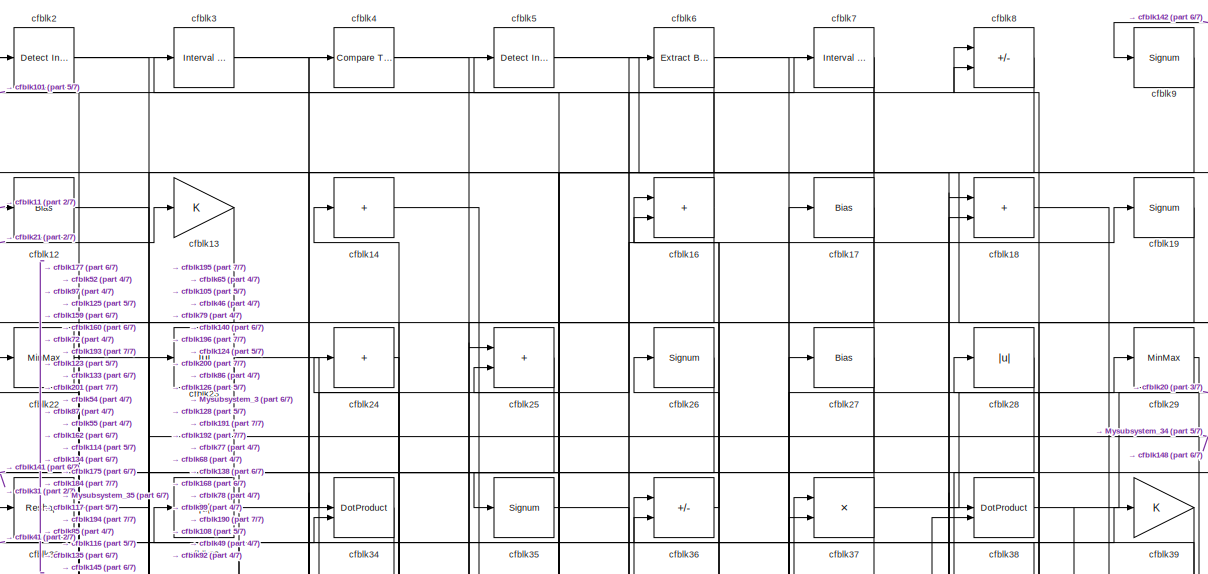
[diagram: root canvas - part 1/7, full width, top band]
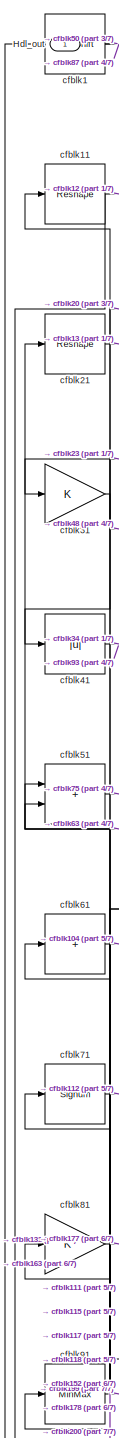
[diagram: root canvas - part 2/7, top left region]
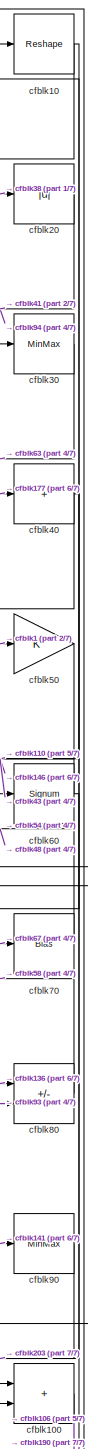
[diagram: root canvas - part 3/7, top right region]
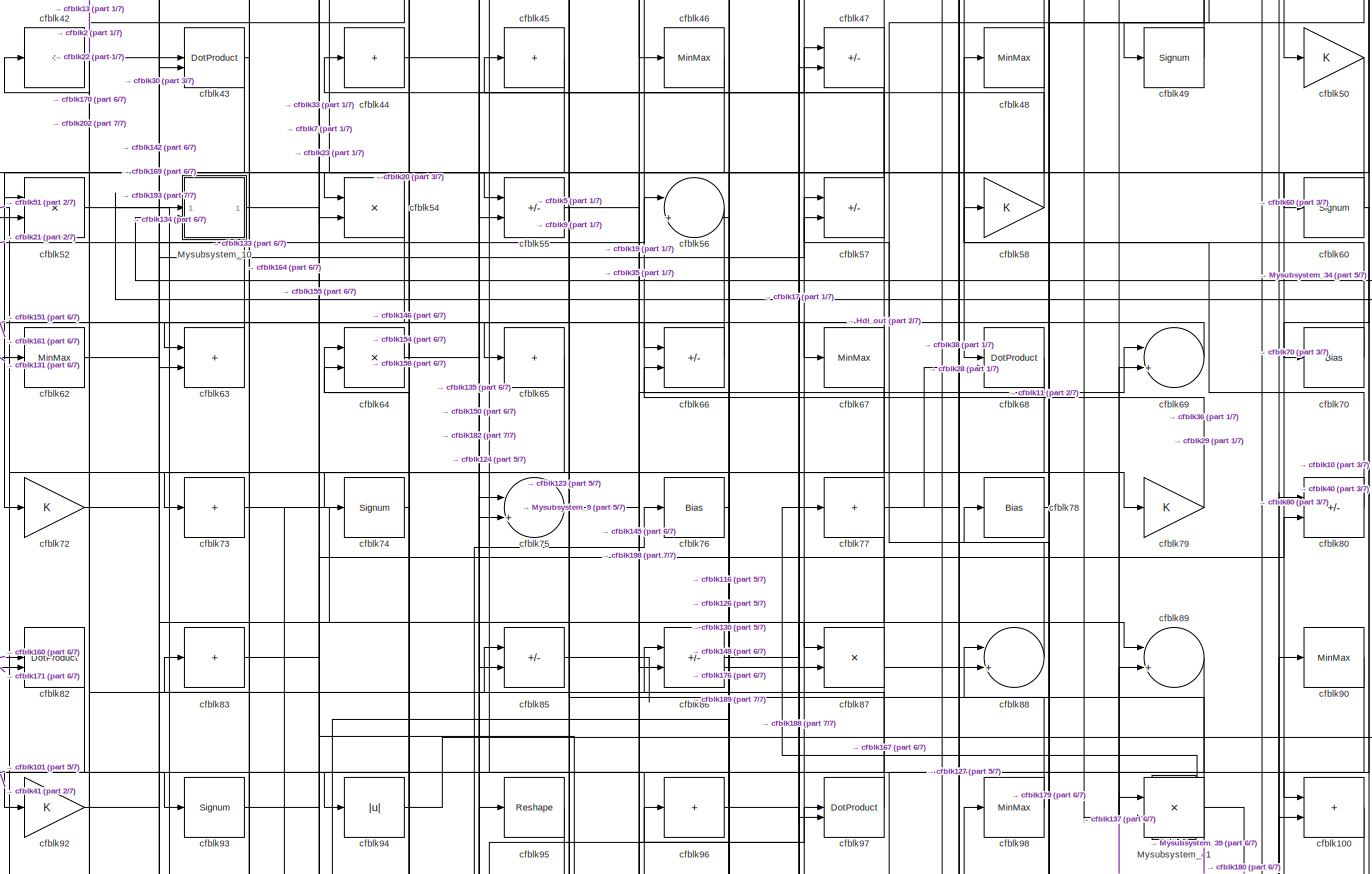
[diagram: root canvas - part 4/7, full width, middle band]
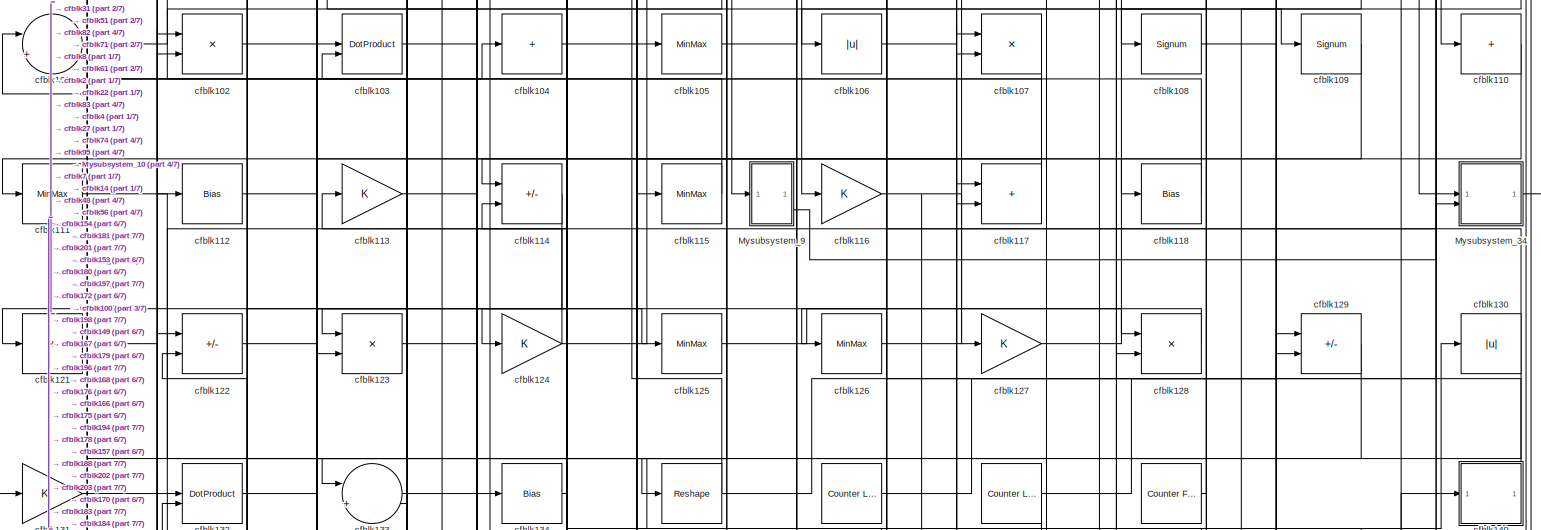
[diagram: root canvas - part 5/7, full width, middle band]
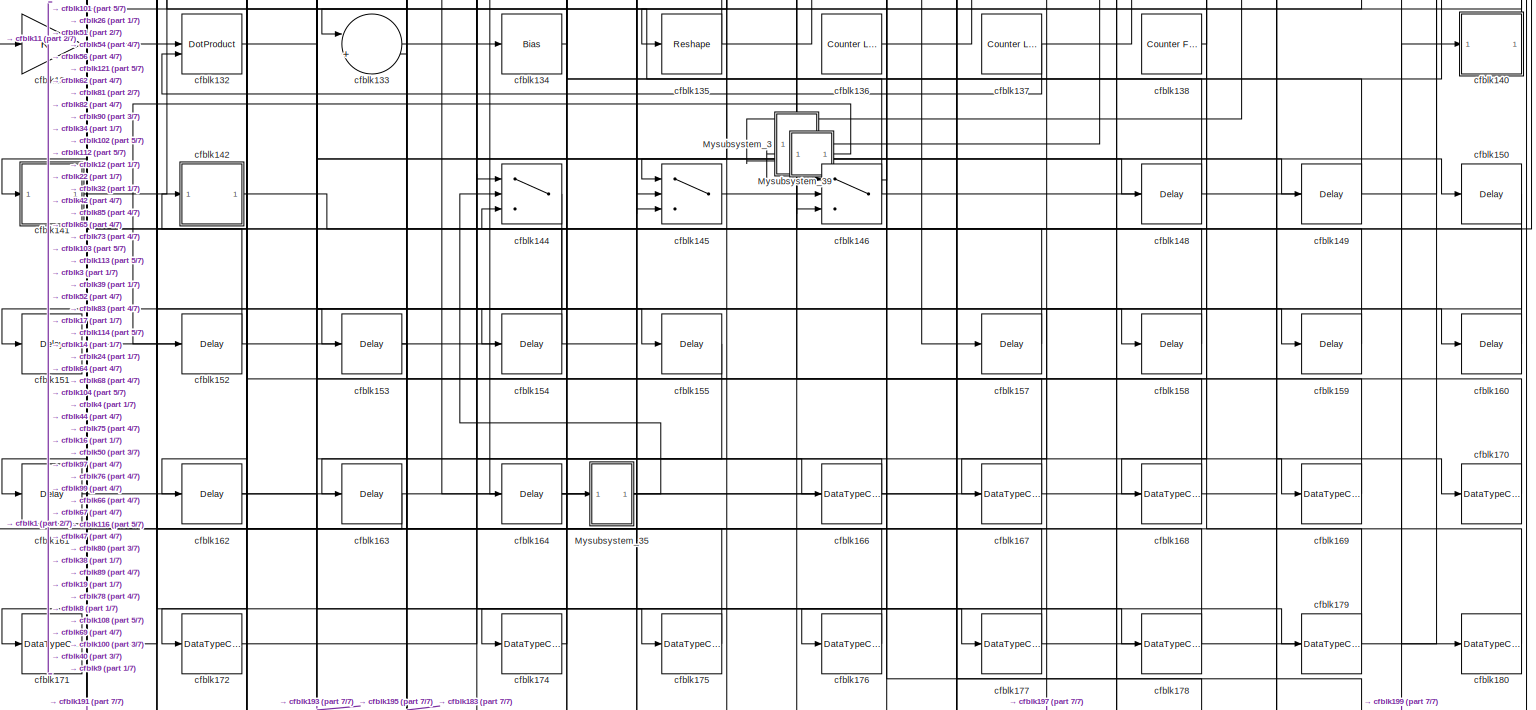
[diagram: root canvas - part 6/7, full width, bottom band]
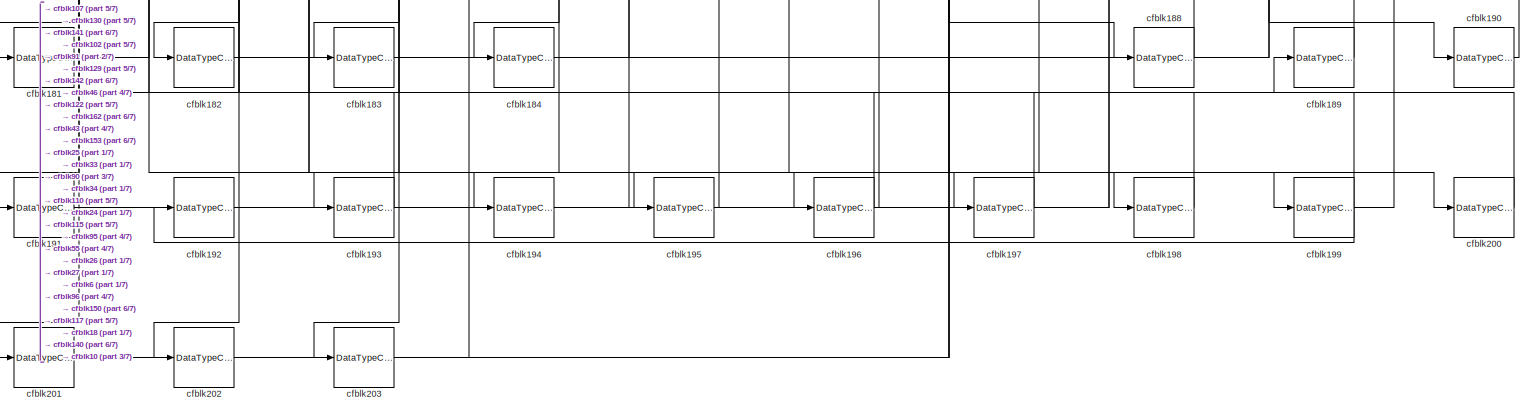
[diagram: root canvas - part 7/7, full width, bottom band]
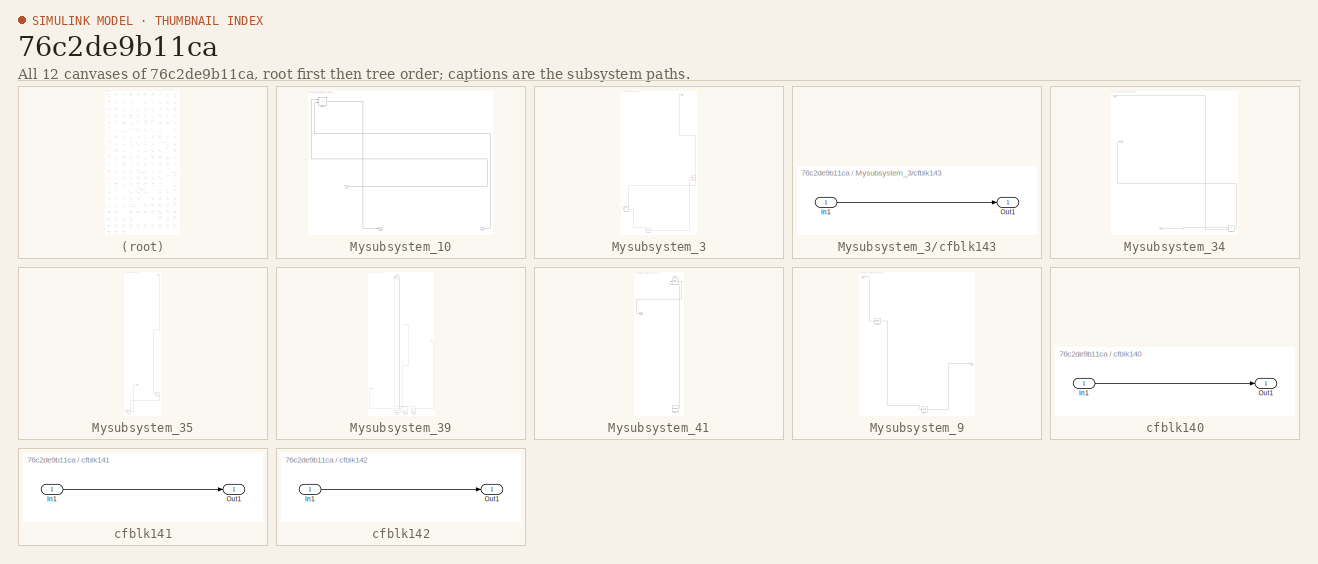
[diagram: thumbnail index - all 12 canvases of the model, root first then tree order]
MODEL slx_76c2de9b11ca
KIND model
CONFIG AbsTol = auto
CONFIG EnableMultiTasking = off
CONFIG FixedStep = auto
CONFIG MaxStep = auto
CONFIG MinStep = auto
CONFIG RelTol = 1e-3
CONFIG SampleTimeConstraint = Unconstrained
CONFIG SolverName = VariableStepAuto
CONFIG StartTime = 0.0
CONFIG StopTime = 10.0
BLOCK [Outport] Hdl_out
  OutDataTypeStr = uint8
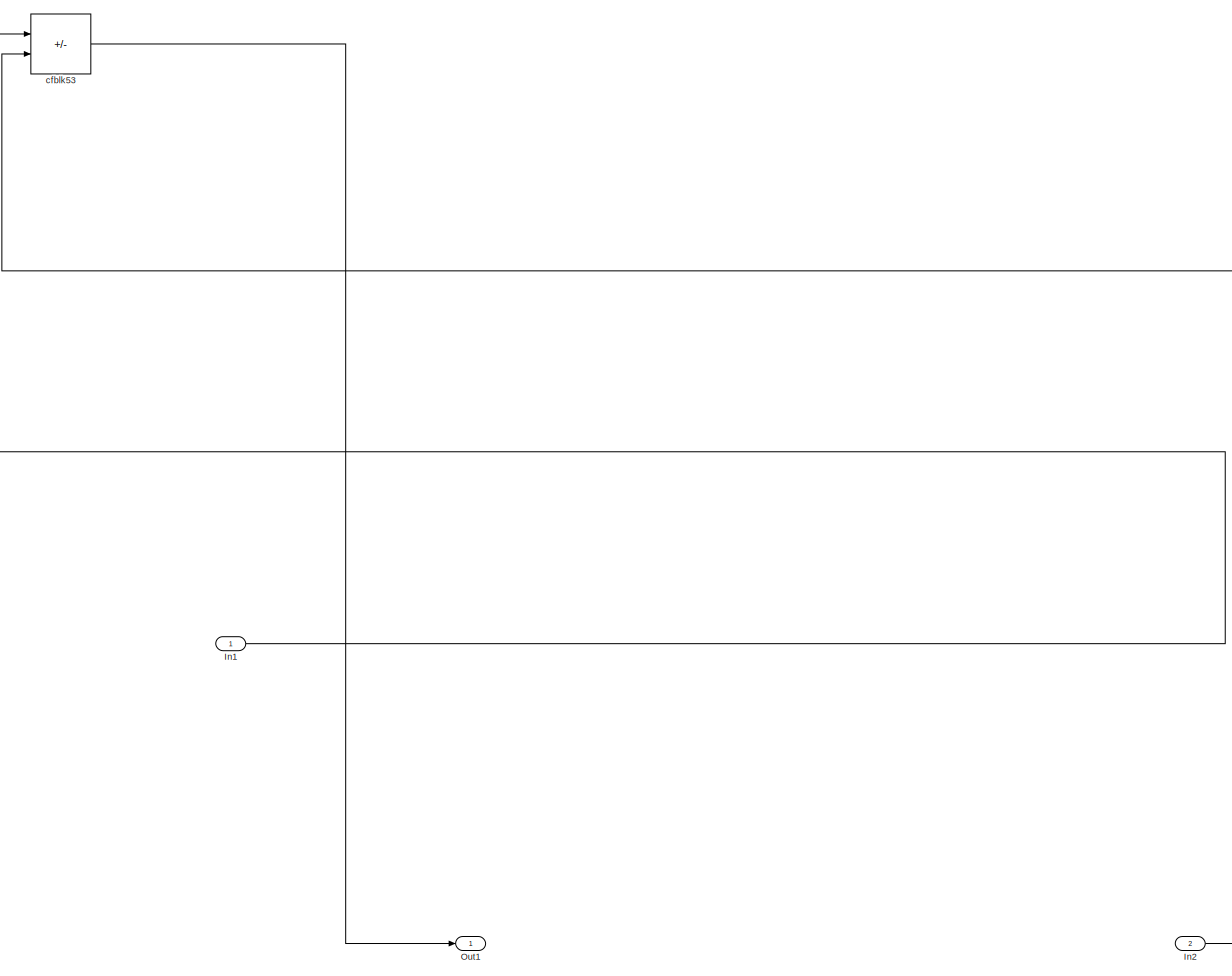
[diagram: Mysubsystem_10 - part 1/1, most of the canvas]
BLOCK [SubSystem] Mysubsystem_10
  RTWFcnName = Mysubsystem_10
  RTWFcnNameOpts = User specified
  RTWFileNameOpts = Use function name
  RTWSystemCode = Reusable function
  TreatAsAtomicUnit = on
BLOCK [Inport] Mysubsystem_10/In1
BLOCK [Inport] Mysubsystem_10/In2
  Port = 2
BLOCK [Outport] Mysubsystem_10/Out1
BLOCK [Sum] Mysubsystem_10/cfblk53
  IconShape = rectangular
  Inputs = +-
BLOCK [SubSystem] Mysubsystem_3
  RTWFcnName = Mysubsystem_3
  RTWFcnNameOpts = User specified
  RTWFileNameOpts = Use function name
  RTWSystemCode = Reusable function
  TreatAsAtomicUnit = on
BLOCK [Outport] Mysubsystem_3/Out1
BLOCK [Signum] Mysubsystem_3/cfblk119
BLOCK [SubSystem] Mysubsystem_3/cfblk143
  LibrarySourceBlock = hdlsllib/Ports &\nSubsystems/Subsystem
BLOCK [Inport] Mysubsystem_3/cfblk143/In1
BLOCK [Outport] Mysubsystem_3/cfblk143/Out1
BLOCK [Delay] Mysubsystem_3/cfblk165
  InputPortMap = u0
  SampleTime = 1
BLOCK [SubSystem] Mysubsystem_34
  RTWFcnName = Mysubsystem_34
  RTWFcnNameOpts = User specified
  RTWFileNameOpts = Use function name
  RTWSystemCode = Reusable function
  TreatAsAtomicUnit = on
BLOCK [Inport] Mysubsystem_34/In1
BLOCK [Inport] Mysubsystem_34/In2
  Port = 2
BLOCK [Outport] Mysubsystem_34/Out1
BLOCK [Sum] Mysubsystem_34/cfblk120
  IconShape = rectangular
  Inputs = +-
BLOCK [SubSystem] Mysubsystem_35
  RTWFcnName = Mysubsystem_35
  RTWFcnNameOpts = User specified
  RTWFileNameOpts = Use function name
  RTWSystemCode = Reusable function
  TreatAsAtomicUnit = on
BLOCK [Inport] Mysubsystem_35/In1
BLOCK [Outport] Mysubsystem_35/Out1
BLOCK [Delay] Mysubsystem_35/cfblk156
  InputPortMap = u0
  SampleTime = 1
BLOCK [DataTypeConversion] Mysubsystem_35/cfblk173
  OutDataTypeStr = uint8
  RndMeth = Floor
  SaturateOnIntegerOverflow = off
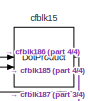
[diagram: Mysubsystem_39 - part 1/4, top center region]
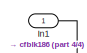
[diagram: Mysubsystem_39 - part 2/4, central region]
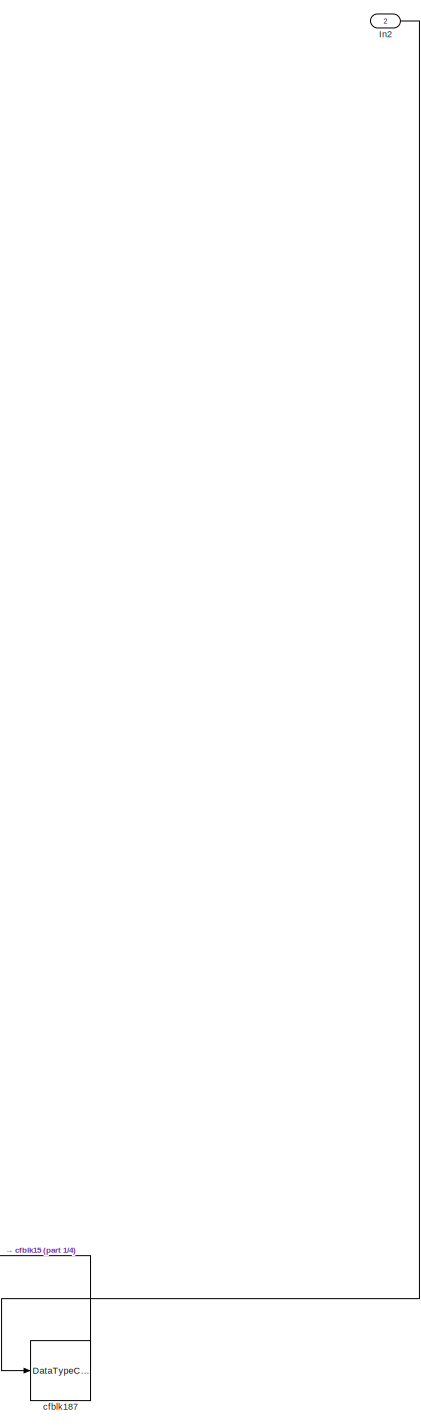
[diagram: Mysubsystem_39 - part 3/4, bottom right region]
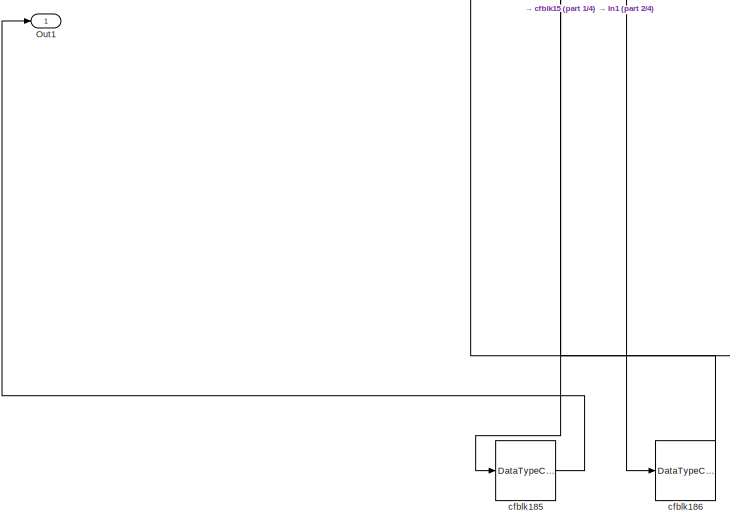
[diagram: Mysubsystem_39 - part 4/4, bottom left region]
BLOCK [SubSystem] Mysubsystem_39
  RTWFcnName = Mysubsystem_39
  RTWFcnNameOpts = User specified
  RTWFileNameOpts = Use function name
  RTWSystemCode = Reusable function
  TreatAsAtomicUnit = on
BLOCK [Inport] Mysubsystem_39/In1
BLOCK [Inport] Mysubsystem_39/In2
  Port = 2
BLOCK [Outport] Mysubsystem_39/Out1
BLOCK [DotProduct] Mysubsystem_39/cfblk15
  OutDataTypeStr = Inherit: Inherit via internal rule
BLOCK [DataTypeConversion] Mysubsystem_39/cfblk185
  OutDataTypeStr = uint8
  RndMeth = Floor
  SaturateOnIntegerOverflow = off
BLOCK [DataTypeConversion] Mysubsystem_39/cfblk186
  OutDataTypeStr = uint8
  RndMeth = Floor
  SaturateOnIntegerOverflow = off
BLOCK [DataTypeConversion] Mysubsystem_39/cfblk187
  OutDataTypeStr = uint8
  RndMeth = Floor
  SaturateOnIntegerOverflow = off
BLOCK [SubSystem] Mysubsystem_41
  RTWFcnName = Mysubsystem_41
  RTWFcnNameOpts = User specified
  RTWFileNameOpts = Use function name
  RTWSystemCode = Reusable function
  TreatAsAtomicUnit = on
BLOCK [Outport] Mysubsystem_41/Out1
BLOCK [Reference] Mysubsystem_41/cfblk139  REF=hdlsllib/Sources/Counter
Limited
  SourceBlock = hdlsllib/Sources/Counter\nLimited
  SourceType = Counter Limited
BLOCK [MinMax] Mysubsystem_41/cfblk59
BLOCK [SubSystem] Mysubsystem_9
  RTWFcnName = Mysubsystem_9
  RTWFcnNameOpts = User specified
  RTWFileNameOpts = Use function name
  RTWSystemCode = Reusable function
  TreatAsAtomicUnit = on
BLOCK [Inport] Mysubsystem_9/In1
BLOCK [Outport] Mysubsystem_9/Out1
BLOCK [Delay] Mysubsystem_9/cfblk147
  InputPortMap = u0
  SampleTime = 1
BLOCK [MinMax] Mysubsystem_9/cfblk84
BLOCK [ArithShift] cfblk1
  BitShiftNumber = 8
  InputPortMap = u0
BLOCK [Reshape] cfblk10
BLOCK [Sum] cfblk100
  IconShape = rectangular
  OutDataTypeStr = uint8
BLOCK [Sum] cfblk101
  Inputs = |++
  OutDataTypeStr = uint8
BLOCK [Product] cfblk102
  Inputs = */
  OutDataTypeStr = uint8
  RndMeth = Zero
  SaturateOnIntegerOverflow = on
BLOCK [DotProduct] cfblk103
  OutDataTypeStr = uint8
BLOCK [Sum] cfblk104
  IconShape = rectangular
  Inputs = +
  OutDataTypeStr = uint8
BLOCK [MinMax] cfblk105
  OutDataTypeStr = uint8
BLOCK [Abs] cfblk106
  OutDataTypeStr = uint8
  SaturateOnIntegerOverflow = off
BLOCK [Product] cfblk107
  Inputs = */
  OutDataTypeStr = uint8
  RndMeth = Zero
  SaturateOnIntegerOverflow = on
BLOCK [Signum] cfblk108
BLOCK [Signum] cfblk109
BLOCK [Reshape] cfblk11
BLOCK [Sum] cfblk110
  IconShape = rectangular
  Inputs = +
  OutDataTypeStr = uint8
BLOCK [MinMax] cfblk111
  OutDataTypeStr = uint8
BLOCK [Bias] cfblk112
  Bias = 0.0
  SaturateOnIntegerOverflow = off
BLOCK [Gain] cfblk113
  OutDataTypeStr = uint8
BLOCK [Sum] cfblk114
  IconShape = rectangular
  Inputs = +-
  OutDataTypeStr = uint8
BLOCK [MinMax] cfblk115
  OutDataTypeStr = uint8
BLOCK [Gain] cfblk116
  OutDataTypeStr = uint8
BLOCK [Sum] cfblk117
  IconShape = rectangular
  OutDataTypeStr = uint8
BLOCK [Bias] cfblk118
  Bias = 0.0
  SaturateOnIntegerOverflow = off
BLOCK [Bias] cfblk12
  Bias = 0.0
  SaturateOnIntegerOverflow = off
BLOCK [Sum] cfblk121
  IconShape = rectangular
  Inputs = +
  OutDataTypeStr = uint8
BLOCK [Sum] cfblk122
  IconShape = rectangular
  Inputs = +-
  OutDataTypeStr = uint8
BLOCK [Product] cfblk123
  Inputs = */
  OutDataTypeStr = uint8
  RndMeth = Zero
  SaturateOnIntegerOverflow = on
BLOCK [Gain] cfblk124
  OutDataTypeStr = uint8
BLOCK [MinMax] cfblk125
  OutDataTypeStr = uint8
BLOCK [MinMax] cfblk126
  OutDataTypeStr = uint8
BLOCK [Gain] cfblk127
  OutDataTypeStr = uint8
BLOCK [Product] cfblk128
  Inputs = */
  OutDataTypeStr = uint8
  RndMeth = Zero
  SaturateOnIntegerOverflow = on
BLOCK [Sum] cfblk129
  IconShape = rectangular
  Inputs = +-
  OutDataTypeStr = uint8
BLOCK [Gain] cfblk13
  OutDataTypeStr = uint8
BLOCK [Abs] cfblk130
  OutDataTypeStr = uint8
  SaturateOnIntegerOverflow = off
BLOCK [Gain] cfblk131
  OutDataTypeStr = uint8
BLOCK [DotProduct] cfblk132
  OutDataTypeStr = uint8
BLOCK [Sum] cfblk133
  Inputs = |++
  OutDataTypeStr = uint8
BLOCK [Bias] cfblk134
  Bias = 0.0
  SaturateOnIntegerOverflow = off
BLOCK [Reshape] cfblk135
BLOCK [Reference] cfblk136  REF=hdlsllib/Sources/Counter
Limited
  SourceBlock = hdlsllib/Sources/Counter\nLimited
  SourceType = Counter Limited
BLOCK [Reference] cfblk137  REF=hdlsllib/Sources/Counter
Limited
  SourceBlock = hdlsllib/Sources/Counter\nLimited
  SourceType = Counter Limited
BLOCK [Reference] cfblk138  REF=hdlsllib/Sources/Counter
Free-Running
  SourceBlock = hdlsllib/Sources/Counter\nFree-Running
  SourceType = Counter Free-Running
BLOCK [Sum] cfblk14
  IconShape = rectangular
  Inputs = +
  OutDataTypeStr = uint8
BLOCK [SubSystem] cfblk140
  LibrarySourceBlock = hdlsllib/Ports &\nSubsystems/Subsystem
BLOCK [Inport] cfblk140/In1
BLOCK [Outport] cfblk140/Out1
BLOCK [SubSystem] cfblk141
  LibrarySourceBlock = hdlsllib/Ports &\nSubsystems/Subsystem
BLOCK [Inport] cfblk141/In1
BLOCK [Outport] cfblk141/Out1
BLOCK [SubSystem] cfblk142
  LibrarySourceBlock = hdlsllib/Ports &\nSubsystems/Subsystem
BLOCK [Inport] cfblk142/In1
BLOCK [Outport] cfblk142/Out1
BLOCK [Switch] cfblk144
  InputSameDT = off
  OutDataTypeStr = uint8
  SaturateOnIntegerOverflow = off
BLOCK [Switch] cfblk145
  InputSameDT = off
  OutDataTypeStr = uint8
  SaturateOnIntegerOverflow = off
BLOCK [Switch] cfblk146
  InputSameDT = off
  OutDataTypeStr = uint8
  SaturateOnIntegerOverflow = off
BLOCK [Delay] cfblk148
  InputPortMap = u0
  SampleTime = 1
BLOCK [Delay] cfblk149
  InputPortMap = u0
  SampleTime = 1
BLOCK [Delay] cfblk150
  InputPortMap = u0
  SampleTime = 1
BLOCK [Delay] cfblk151
  InputPortMap = u0
  SampleTime = 1
BLOCK [Delay] cfblk152
  InputPortMap = u0
  SampleTime = 1
BLOCK [Delay] cfblk153
  InputPortMap = u0
  SampleTime = 1
BLOCK [Delay] cfblk154
  InputPortMap = u0
  SampleTime = 1
BLOCK [Delay] cfblk155
  InputPortMap = u0
  SampleTime = 1
BLOCK [Delay] cfblk157
  InputPortMap = u0
  SampleTime = 1
BLOCK [Delay] cfblk158
  InputPortMap = u0
  SampleTime = 1
BLOCK [Delay] cfblk159
  InputPortMap = u0
  SampleTime = 1
BLOCK [Sum] cfblk16
  IconShape = rectangular
  OutDataTypeStr = uint8
BLOCK [Delay] cfblk160
  InputPortMap = u0
  SampleTime = 1
BLOCK [Delay] cfblk161
  InputPortMap = u0
  SampleTime = 1
BLOCK [Delay] cfblk162
  InputPortMap = u0
  SampleTime = 1
BLOCK [Delay] cfblk163
  InputPortMap = u0
  SampleTime = 1
BLOCK [Delay] cfblk164
  InputPortMap = u0
  SampleTime = 1
BLOCK [DataTypeConversion] cfblk166
  OutDataTypeStr = uint8
  RndMeth = Floor
  SaturateOnIntegerOverflow = off
BLOCK [DataTypeConversion] cfblk167
  OutDataTypeStr = uint8
  RndMeth = Floor
  SaturateOnIntegerOverflow = off
BLOCK [DataTypeConversion] cfblk168
  OutDataTypeStr = uint8
  RndMeth = Floor
  SaturateOnIntegerOverflow = off
BLOCK [DataTypeConversion] cfblk169
  OutDataTypeStr = uint8
  RndMeth = Floor
  SaturateOnIntegerOverflow = off
BLOCK [Bias] cfblk17
  Bias = 0.0
  SaturateOnIntegerOverflow = off
BLOCK [DataTypeConversion] cfblk170
  OutDataTypeStr = uint8
  RndMeth = Floor
  SaturateOnIntegerOverflow = off
BLOCK [DataTypeConversion] cfblk171
  OutDataTypeStr = uint8
  RndMeth = Floor
  SaturateOnIntegerOverflow = off
BLOCK [DataTypeConversion] cfblk172
  OutDataTypeStr = uint8
  RndMeth = Floor
  SaturateOnIntegerOverflow = off
BLOCK [DataTypeConversion] cfblk174
  OutDataTypeStr = uint8
  RndMeth = Floor
  SaturateOnIntegerOverflow = off
BLOCK [DataTypeConversion] cfblk175
  OutDataTypeStr = uint8
  RndMeth = Floor
  SaturateOnIntegerOverflow = off
BLOCK [DataTypeConversion] cfblk176
  OutDataTypeStr = uint8
  RndMeth = Floor
  SaturateOnIntegerOverflow = off
BLOCK [DataTypeConversion] cfblk177
  OutDataTypeStr = uint8
  RndMeth = Floor
  SaturateOnIntegerOverflow = off
BLOCK [DataTypeConversion] cfblk178
  OutDataTypeStr = uint8
  RndMeth = Floor
  SaturateOnIntegerOverflow = off
BLOCK [DataTypeConversion] cfblk179
  OutDataTypeStr = uint8
  RndMeth = Floor
  SaturateOnIntegerOverflow = off
BLOCK [Sum] cfblk18
  IconShape = rectangular
  OutDataTypeStr = uint8
BLOCK [DataTypeConversion] cfblk180
  OutDataTypeStr = uint8
  RndMeth = Floor
  SaturateOnIntegerOverflow = off
BLOCK [DataTypeConversion] cfblk181
  OutDataTypeStr = uint8
  RndMeth = Floor
  SaturateOnIntegerOverflow = off
BLOCK [DataTypeConversion] cfblk182
  OutDataTypeStr = uint8
  RndMeth = Floor
  SaturateOnIntegerOverflow = off
BLOCK [DataTypeConversion] cfblk183
  OutDataTypeStr = uint8
  RndMeth = Floor
  SaturateOnIntegerOverflow = off
BLOCK [DataTypeConversion] cfblk184
  OutDataTypeStr = uint8
  RndMeth = Floor
  SaturateOnIntegerOverflow = off
BLOCK [DataTypeConversion] cfblk188
  OutDataTypeStr = uint8
  RndMeth = Floor
  SaturateOnIntegerOverflow = off
BLOCK [DataTypeConversion] cfblk189
  OutDataTypeStr = uint8
  RndMeth = Floor
  SaturateOnIntegerOverflow = off
BLOCK [Signum] cfblk19
BLOCK [DataTypeConversion] cfblk190
  OutDataTypeStr = uint8
  RndMeth = Floor
  SaturateOnIntegerOverflow = off
BLOCK [DataTypeConversion] cfblk191
  OutDataTypeStr = uint8
  RndMeth = Floor
  SaturateOnIntegerOverflow = off
BLOCK [DataTypeConversion] cfblk192
  OutDataTypeStr = uint8
  RndMeth = Floor
  SaturateOnIntegerOverflow = off
BLOCK [DataTypeConversion] cfblk193
  OutDataTypeStr = uint8
  RndMeth = Floor
  SaturateOnIntegerOverflow = off
BLOCK [DataTypeConversion] cfblk194
  OutDataTypeStr = uint8
  RndMeth = Floor
  SaturateOnIntegerOverflow = off
BLOCK [DataTypeConversion] cfblk195
  OutDataTypeStr = uint8
  RndMeth = Floor
  SaturateOnIntegerOverflow = off
BLOCK [DataTypeConversion] cfblk196
  OutDataTypeStr = uint8
  RndMeth = Floor
  SaturateOnIntegerOverflow = off
BLOCK [DataTypeConversion] cfblk197
  OutDataTypeStr = uint8
  RndMeth = Floor
  SaturateOnIntegerOverflow = off
BLOCK [DataTypeConversion] cfblk198
  OutDataTypeStr = uint8
  RndMeth = Floor
  SaturateOnIntegerOverflow = off
BLOCK [DataTypeConversion] cfblk199
  OutDataTypeStr = uint8
  RndMeth = Floor
  SaturateOnIntegerOverflow = off
BLOCK [Reference] cfblk2  REF=simulink/Logic and Bit
Operations/Detect
Increase
  LibrarySourceBlock = hdlsllib/Logic and Bit\nOperations/Detect\nIncrease
  SourceBlock = simulink/Logic and Bit\nOperations/Detect\nIncrease
  SourceType = Detect Increase
BLOCK [Abs] cfblk20
  OutDataTypeStr = uint8
  SaturateOnIntegerOverflow = off
BLOCK [DataTypeConversion] cfblk200
  OutDataTypeStr = uint8
  RndMeth = Floor
  SaturateOnIntegerOverflow = off
BLOCK [DataTypeConversion] cfblk201
  OutDataTypeStr = uint8
  RndMeth = Floor
  SaturateOnIntegerOverflow = off
BLOCK [DataTypeConversion] cfblk202
  OutDataTypeStr = uint8
  RndMeth = Floor
  SaturateOnIntegerOverflow = off
BLOCK [DataTypeConversion] cfblk203
  OutDataTypeStr = uint8
  RndMeth = Floor
  SaturateOnIntegerOverflow = off
BLOCK [Reshape] cfblk21
BLOCK [MinMax] cfblk22
  OutDataTypeStr = uint8
BLOCK [Abs] cfblk23
  OutDataTypeStr = uint8
  SaturateOnIntegerOverflow = off
BLOCK [Sum] cfblk24
  IconShape = rectangular
  Inputs = +
  OutDataTypeStr = uint8
BLOCK [Sum] cfblk25
  IconShape = rectangular
  OutDataTypeStr = uint8
BLOCK [Signum] cfblk26
BLOCK [Bias] cfblk27
  Bias = 0.0
  SaturateOnIntegerOverflow = off
BLOCK [Abs] cfblk28
  OutDataTypeStr = uint8
  SaturateOnIntegerOverflow = off
BLOCK [MinMax] cfblk29
  OutDataTypeStr = uint8
BLOCK [Reference] cfblk3  REF=hdlsllib/Logic and Bit
Operations/Interval Test
  SourceBlock = hdlsllib/Logic and Bit\nOperations/Interval Test
  SourceType = Interval Test
BLOCK [MinMax] cfblk30
  OutDataTypeStr = uint8
BLOCK [Gain] cfblk31
  OutDataTypeStr = uint8
BLOCK [Reshape] cfblk32
BLOCK [Abs] cfblk33
  OutDataTypeStr = uint8
  SaturateOnIntegerOverflow = off
BLOCK [DotProduct] cfblk34
  OutDataTypeStr = uint8
BLOCK [Signum] cfblk35
BLOCK [Sum] cfblk36
  IconShape = rectangular
  Inputs = +-
  OutDataTypeStr = uint8
BLOCK [Product] cfblk37
  Inputs = */
  OutDataTypeStr = uint8
  RndMeth = Zero
  SaturateOnIntegerOverflow = on
BLOCK [DotProduct] cfblk38
  OutDataTypeStr = uint8
BLOCK [Gain] cfblk39
  OutDataTypeStr = uint8
BLOCK [Reference] cfblk4  REF=hdlsllib/Logic and Bit
Operations/Compare
To Zero
  SourceBlock = hdlsllib/Logic and Bit\nOperations/Compare\nTo Zero
  SourceType = Compare To Zero
BLOCK [Sum] cfblk40
  IconShape = rectangular
  Inputs = +
  OutDataTypeStr = uint8
BLOCK [Abs] cfblk41
  OutDataTypeStr = uint8
  SaturateOnIntegerOverflow = off
BLOCK [Sum] cfblk42
  IconShape = rectangular
  Inputs = +
  OutDataTypeStr = uint8
BLOCK [DotProduct] cfblk43
  OutDataTypeStr = uint8
BLOCK [Sum] cfblk44
  IconShape = rectangular
  Inputs = +
  OutDataTypeStr = uint8
BLOCK [Sum] cfblk45
  IconShape = rectangular
  Inputs = +
  OutDataTypeStr = uint8
BLOCK [MinMax] cfblk46
  OutDataTypeStr = uint8
BLOCK [Sum] cfblk47
  IconShape = rectangular
  Inputs = +-
  OutDataTypeStr = uint8
BLOCK [MinMax] cfblk48
  OutDataTypeStr = uint8
BLOCK [Signum] cfblk49
BLOCK [Reference] cfblk5  REF=simulink/Logic and Bit
Operations/Detect
Increase
  LibrarySourceBlock = hdlsllib/Logic and Bit\nOperations/Detect\nIncrease
  SourceBlock = simulink/Logic and Bit\nOperations/Detect\nIncrease
  SourceType = Detect Increase
BLOCK [Gain] cfblk50
  OutDataTypeStr = uint8
BLOCK [Sum] cfblk51
  IconShape = rectangular
  OutDataTypeStr = uint8
BLOCK [Product] cfblk52
  Inputs = */
  OutDataTypeStr = uint8
  RndMeth = Zero
  SaturateOnIntegerOverflow = on
BLOCK [Product] cfblk54
  Inputs = */
  OutDataTypeStr = uint8
  RndMeth = Zero
  SaturateOnIntegerOverflow = on
BLOCK [Sum] cfblk55
  IconShape = rectangular
  Inputs = +-
  OutDataTypeStr = uint8
BLOCK [Sum] cfblk56
  Inputs = |++
  OutDataTypeStr = uint8
BLOCK [Sum] cfblk57
  IconShape = rectangular
  Inputs = +-
  OutDataTypeStr = uint8
BLOCK [Gain] cfblk58
  OutDataTypeStr = uint8
BLOCK [Reference] cfblk6  REF=simulink/Logic and Bit
Operations/Extract Bits
  LibrarySourceBlock = hdlsllib/Logic and Bit\nOperations/Extract Bits
  SourceBlock = simulink/Logic and Bit\nOperations/Extract Bits
  SourceType = Extract Bits
BLOCK [Signum] cfblk60
BLOCK [Sum] cfblk61
  IconShape = rectangular
  Inputs = +
  OutDataTypeStr = uint8
BLOCK [MinMax] cfblk62
  OutDataTypeStr = uint8
BLOCK [Sum] cfblk63
  IconShape = rectangular
  OutDataTypeStr = uint8
BLOCK [Product] cfblk64
  Inputs = */
  OutDataTypeStr = uint8
  RndMeth = Zero
  SaturateOnIntegerOverflow = on
BLOCK [Sum] cfblk65
  IconShape = rectangular
  Inputs = +
  OutDataTypeStr = uint8
BLOCK [Sum] cfblk66
  IconShape = rectangular
  Inputs = +-
  OutDataTypeStr = uint8
BLOCK [MinMax] cfblk67
  OutDataTypeStr = uint8
BLOCK [DotProduct] cfblk68
  OutDataTypeStr = uint8
BLOCK [Sum] cfblk69
  Inputs = |++
  OutDataTypeStr = uint8
BLOCK [Reference] cfblk7  REF=hdlsllib/Logic and Bit
Operations/Interval Test
  SourceBlock = hdlsllib/Logic and Bit\nOperations/Interval Test
  SourceType = Interval Test
BLOCK [Bias] cfblk70
  Bias = 0.0
  SaturateOnIntegerOverflow = off
BLOCK [Signum] cfblk71
BLOCK [Gain] cfblk72
  OutDataTypeStr = uint8
BLOCK [Sum] cfblk73
  IconShape = rectangular
  Inputs = +
  OutDataTypeStr = uint8
BLOCK [Signum] cfblk74
BLOCK [Sum] cfblk75
  Inputs = |++
  OutDataTypeStr = uint8
BLOCK [Bias] cfblk76
  Bias = 0.0
  SaturateOnIntegerOverflow = off
BLOCK [Sum] cfblk77
  IconShape = rectangular
  Inputs = +
  OutDataTypeStr = uint8
BLOCK [Bias] cfblk78
  Bias = 0.0
  SaturateOnIntegerOverflow = off
BLOCK [Gain] cfblk79
  OutDataTypeStr = uint8
BLOCK [Sum] cfblk8
  IconShape = rectangular
  Inputs = +-
  OutDataTypeStr = uint8
BLOCK [Sum] cfblk80
  IconShape = rectangular
  Inputs = +-
  OutDataTypeStr = uint8
BLOCK [Gain] cfblk81
  OutDataTypeStr = uint8
BLOCK [DotProduct] cfblk82
  OutDataTypeStr = uint8
BLOCK [Sum] cfblk83
  IconShape = rectangular
  Inputs = +
  OutDataTypeStr = uint8
BLOCK [Sum] cfblk85
  IconShape = rectangular
  Inputs = +-
  OutDataTypeStr = uint8
BLOCK [Sum] cfblk86
  IconShape = rectangular
  Inputs = +-
  OutDataTypeStr = uint8
BLOCK [Product] cfblk87
  Inputs = */
  OutDataTypeStr = uint8
  RndMeth = Zero
  SaturateOnIntegerOverflow = on
BLOCK [Sum] cfblk88
  Inputs = |++
  OutDataTypeStr = uint8
BLOCK [Sum] cfblk89
  Inputs = |++
  OutDataTypeStr = uint8
BLOCK [Signum] cfblk9
BLOCK [MinMax] cfblk90
  OutDataTypeStr = uint8
BLOCK [MinMax] cfblk91
  OutDataTypeStr = uint8
BLOCK [Gain] cfblk92
  OutDataTypeStr = uint8
BLOCK [Signum] cfblk93
BLOCK [Abs] cfblk94
  OutDataTypeStr = uint8
  SaturateOnIntegerOverflow = off
BLOCK [Reshape] cfblk95
BLOCK [Sum] cfblk96
  IconShape = rectangular
  Inputs = +
  OutDataTypeStr = uint8
BLOCK [DotProduct] cfblk97
  OutDataTypeStr = uint8
BLOCK [MinMax] cfblk98
  OutDataTypeStr = uint8
BLOCK [Product] cfblk99
  Inputs = */
  OutDataTypeStr = uint8
  RndMeth = Zero
  SaturateOnIntegerOverflow = on
LINE Mysubsystem_10/In1:1 -> Mysubsystem_10/cfblk53:1
LINE Mysubsystem_10/In2:1 -> Mysubsystem_10/cfblk53:2
LINE Mysubsystem_10/cfblk53:1 -> Mysubsystem_10/Out1:1
LINE Mysubsystem_10:1 -> Mysubsystem_9:1
NET Mysubsystem_3/cfblk119:1 -> Mysubsystem_3/Out1:1, Mysubsystem_3/cfblk143:1
LINE Mysubsystem_3/cfblk143/In1:1 -> Mysubsystem_3/cfblk143/Out1:1
LINE Mysubsystem_3/cfblk143:1 -> Mysubsystem_3/cfblk165:1
LINE Mysubsystem_3/cfblk165:1 -> Mysubsystem_3/cfblk119:1
LINE Mysubsystem_34/In1:1 -> Mysubsystem_34/cfblk120:2
LINE Mysubsystem_34/In2:1 -> Mysubsystem_34/cfblk120:1
LINE Mysubsystem_34/cfblk120:1 -> Mysubsystem_34/Out1:1
LINE Mysubsystem_34:1 -> Mysubsystem_10:2
LINE Mysubsystem_35/In1:1 -> Mysubsystem_35/cfblk156:1
LINE Mysubsystem_35/cfblk156:1 -> Mysubsystem_35/cfblk173:1
LINE Mysubsystem_35/cfblk173:1 -> Mysubsystem_35/Out1:1
LINE Mysubsystem_35:1 -> cfblk144:2
LINE Mysubsystem_39/In1:1 -> Mysubsystem_39/cfblk186:1
LINE Mysubsystem_39/In2:1 -> Mysubsystem_39/cfblk187:1
LINE Mysubsystem_39/cfblk15:1 -> Mysubsystem_39/cfblk185:1
LINE Mysubsystem_39/cfblk185:1 -> Mysubsystem_39/Out1:1
LINE Mysubsystem_39/cfblk186:1 -> Mysubsystem_39/cfblk15:1
LINE Mysubsystem_39/cfblk187:1 -> Mysubsystem_39/cfblk15:2
LINE Mysubsystem_39:1 -> cfblk152:1
LINE Mysubsystem_3:1 -> cfblk38:2
LINE Mysubsystem_41/cfblk139:1 -> Mysubsystem_41/cfblk59:1
LINE Mysubsystem_41/cfblk59:1 -> Mysubsystem_41/Out1:1
LINE Mysubsystem_41:1 -> cfblk77:1
LINE Mysubsystem_9/In1:1 -> Mysubsystem_9/cfblk84:1
LINE Mysubsystem_9/cfblk147:1 -> Mysubsystem_9/Out1:1
LINE Mysubsystem_9/cfblk84:1 -> Mysubsystem_9/cfblk147:1
LINE Mysubsystem_9:1 -> Mysubsystem_34:2
LINE cfblk100:1 -> cfblk106:1
NET cfblk101:1 -> cfblk109:1, cfblk8:2
LINE cfblk102:1 -> cfblk179:1
LINE cfblk103:1 -> cfblk166:1
NET cfblk104:1 -> cfblk105:1, cfblk178:1
LINE cfblk105:1 -> cfblk7:1
LINE cfblk106:1 -> cfblk30:1
LINE cfblk107:1 -> cfblk201:1
LINE cfblk108:1 -> cfblk170:1
NET cfblk109:1 -> cfblk118:1, cfblk123:2
NET cfblk10:1 -> cfblk43:2, cfblk60:1
LINE cfblk110:1 -> cfblk194:1
LINE cfblk111:1 -> cfblk130:1
LINE cfblk112:1 -> cfblk149:1
LINE cfblk113:1 -> cfblk175:1
LINE cfblk114:1 -> cfblk172:1
LINE cfblk115:1 -> cfblk61:1
NET cfblk116:1 -> cfblk127:1, cfblk157:1, cfblk56:2
LINE cfblk117:1 -> cfblk71:1
LINE cfblk118:1 -> cfblk51:1
NET cfblk11:1 -> cfblk12:1, cfblk131:1
LINE cfblk121:1 -> cfblk153:1
LINE cfblk122:1 -> cfblk196:1
LINE cfblk123:1 -> cfblk4:1
NET cfblk124:1 -> cfblk37:2, cfblk83:1
LINE cfblk125:1 -> cfblk128:1
LINE cfblk126:1 -> cfblk37:1
LINE cfblk127:1 -> cfblk98:1
LINE cfblk128:1 -> cfblk121:1
LINE cfblk129:1 -> cfblk182:1
LINE cfblk12:1 -> cfblk159:1
NET cfblk130:1 -> cfblk181:1, cfblk86:1
LINE cfblk131:1 -> cfblk62:1
LINE cfblk132:1 -> cfblk158:1
LINE cfblk133:1 -> cfblk39:1
LINE cfblk134:1 -> cfblk24:1
NET cfblk135:1 -> cfblk76:1, cfblk99:1
LINE cfblk136:1 -> cfblk80:1
NET cfblk137:1 -> cfblk132:2, cfblk89:2
LINE cfblk138:1 -> cfblk8:1
LINE cfblk13:1 -> cfblk52:1
LINE cfblk140/In1:1 -> cfblk140/Out1:1
LINE cfblk140:1 -> cfblk16:1
LINE cfblk141/In1:1 -> cfblk141/Out1:1
NET cfblk141:1 -> cfblk191:1, cfblk90:1
LINE cfblk142/In1:1 -> cfblk142/Out1:1
NET cfblk142:1 -> cfblk85:1, cfblk9:1
LINE cfblk144:1 -> cfblk171:1
LINE cfblk145:1 -> cfblk97:1
NET cfblk146:1 -> cfblk100:2, cfblk64:1
LINE cfblk148:1 -> cfblk66:2
LINE cfblk149:1 -> cfblk114:2
LINE cfblk14:1 -> cfblk116:1
LINE cfblk150:1 -> cfblk197:1
LINE cfblk151:1 -> cfblk75:1
LINE cfblk152:1 -> cfblk51:2
LINE cfblk153:1 -> cfblk183:1
LINE cfblk154:1 -> cfblk101:1
LINE cfblk155:1 -> cfblk174:1
LINE cfblk157:1 -> cfblk146:2
LINE cfblk158:1 -> cfblk64:2
LINE cfblk159:1 -> cfblk133:2
LINE cfblk160:1 -> cfblk82:1
LINE cfblk161:1 -> cfblk69:2
LINE cfblk162:1 -> cfblk195:1
LINE cfblk163:1 -> cfblk1:1
LINE cfblk164:1 -> cfblk47:2
LINE cfblk166:1 -> cfblk163:1
LINE cfblk167:1 -> cfblk103:1
LINE cfblk168:1 -> cfblk103:2
LINE cfblk169:1 -> cfblk146:1
NET cfblk16:1 -> cfblk135:1, cfblk3:1
LINE cfblk170:1 -> cfblk42:1
LINE cfblk171:1 -> cfblk82:2
LINE cfblk172:1 -> cfblk144:1
LINE cfblk174:1 -> cfblk144:3
NET cfblk175:1 -> cfblk132:1, cfblk14:1
LINE cfblk176:1 -> cfblk113:1
NET cfblk177:1 -> cfblk32:1, cfblk40:1
LINE cfblk178:1 -> cfblk81:1
LINE cfblk179:1 -> cfblk78:1
NET cfblk17:1 -> Mysubsystem_35:1, cfblk85:2
LINE cfblk180:1 -> cfblk102:1
LINE cfblk181:1 -> cfblk102:2
NET cfblk182:1 -> cfblk115:1, cfblk95:1
LINE cfblk183:1 -> cfblk129:1
LINE cfblk184:1 -> cfblk129:2
LINE cfblk188:1 -> cfblk117:1
LINE cfblk189:1 -> cfblk96:1
LINE cfblk18:1 -> cfblk190:1
LINE cfblk190:1 -> cfblk10:1
LINE cfblk191:1 -> cfblk18:1
LINE cfblk192:1 -> cfblk18:2
NET cfblk193:1 -> cfblk142:1, cfblk43:1
LINE cfblk194:1 -> cfblk25:1
LINE cfblk195:1 -> cfblk25:2
NET cfblk196:1 -> cfblk26:1, cfblk33:1
LINE cfblk197:1 -> cfblk122:1
LINE cfblk198:1 -> cfblk122:2
NET cfblk199:1 -> cfblk140:1, cfblk189:1, cfblk192:1
LINE cfblk19:1 -> cfblk168:1
LINE cfblk1:1 -> cfblk50:1
LINE cfblk200:1 -> cfblk91:1
NET cfblk201:1 -> cfblk27:1, cfblk34:1
LINE cfblk202:1 -> cfblk107:1
LINE cfblk203:1 -> cfblk107:2
NET cfblk20:1 -> cfblk41:1, cfblk94:1
LINE cfblk21:1 -> cfblk13:1
NET cfblk22:1 -> Mysubsystem_34:1, cfblk148:1
NET cfblk23:1 -> cfblk31:1, cfblk55:1
LINE cfblk24:1 -> cfblk184:1
LINE cfblk25:1 -> cfblk193:1
LINE cfblk26:1 -> cfblk141:1
LINE cfblk27:1 -> cfblk114:1
LINE cfblk28:1 -> cfblk68:1
LINE cfblk29:1 -> cfblk49:1
NET cfblk2:1 -> cfblk125:1, cfblk86:2
LINE cfblk30:1 -> cfblk63:2
LINE cfblk31:1 -> cfblk111:1
LINE cfblk32:1 -> cfblk160:1
NET cfblk33:1 -> cfblk6:1, cfblk87:2
LINE cfblk34:1 -> cfblk162:1
LINE cfblk35:1 -> cfblk46:1
LINE cfblk36:1 -> cfblk16:2
LINE cfblk37:1 -> cfblk29:1
NET cfblk38:1 -> cfblk20:1, cfblk99:2
LINE cfblk39:1 -> cfblk108:1
LINE cfblk3:1 -> cfblk145:2
NET cfblk40:1 -> cfblk67:1, cfblk70:1
NET cfblk41:1 -> cfblk34:2, cfblk93:1
LINE cfblk42:1 -> cfblk169:1
NET cfblk43:1 -> cfblk52:2, cfblk73:1
LINE cfblk44:1 -> cfblk150:1
LINE cfblk45:1 -> cfblk72:1
LINE cfblk46:1 -> cfblk202:1
LINE cfblk47:1 -> cfblk55:2
NET cfblk48:1 -> cfblk11:1, cfblk126:1
LINE cfblk49:1 -> cfblk36:1
NET cfblk4:1 -> cfblk117:2, cfblk145:3
NET cfblk50:1 -> cfblk110:1, cfblk146:3
LINE cfblk51:1 -> cfblk75:2
LINE cfblk52:1 -> cfblk134:1
LINE cfblk54:1 -> cfblk161:1
NET cfblk55:1 -> cfblk198:1, cfblk19:1
NET cfblk56:1 -> cfblk151:1, cfblk74:1
LINE cfblk57:1 -> cfblk44:1
LINE cfblk58:1 -> cfblk45:1
LINE cfblk5:1 -> cfblk128:2
NET cfblk60:1 -> cfblk100:1, cfblk54:1
LINE cfblk61:1 -> cfblk104:1
NET cfblk62:1 -> cfblk56:1, cfblk79:1
LINE cfblk63:1 -> cfblk21:1
LINE cfblk64:1 -> cfblk47:1
LINE cfblk65:1 -> cfblk133:1
LINE cfblk66:1 -> cfblk63:1
LINE cfblk67:1 -> cfblk176:1
LINE cfblk68:1 -> cfblk154:1
LINE cfblk69:1 -> cfblk66:1
NET cfblk6:1 -> cfblk200:1, cfblk35:1
LINE cfblk70:1 -> cfblk48:1
LINE cfblk71:1 -> cfblk112:1
LINE cfblk72:1 -> cfblk23:1
NET cfblk73:1 -> cfblk164:1, cfblk89:1
LINE cfblk74:1 -> cfblk124:1
LINE cfblk75:1 -> cfblk69:1
LINE cfblk76:1 -> Mysubsystem_39:1
NET cfblk77:1 -> cfblk38:1, cfblk68:2, cfblk97:2
LINE cfblk78:1 -> cfblk28:1
LINE cfblk79:1 -> cfblk36:2
LINE cfblk7:1 -> cfblk54:2
LINE cfblk80:1 -> cfblk58:1
LINE cfblk81:1 -> cfblk177:1
LINE cfblk82:1 -> cfblk101:2
NET cfblk83:1 -> cfblk155:1, cfblk87:1
LINE cfblk85:1 -> cfblk88:2
LINE cfblk86:1 -> cfblk17:1
NET cfblk87:1 -> Hdl_out:1, cfblk92:1
LINE cfblk88:1 -> cfblk57:1
LINE cfblk89:1 -> cfblk167:1
LINE cfblk8:1 -> cfblk145:1
LINE cfblk90:1 -> cfblk203:1
LINE cfblk91:1 -> cfblk199:1
NET cfblk92:1 -> cfblk2:1, cfblk57:2
LINE cfblk93:1 -> cfblk80:2
LINE cfblk94:1 -> Mysubsystem_10:1
LINE cfblk95:1 -> cfblk123:1
LINE cfblk96:1 -> cfblk188:1
LINE cfblk97:1 -> cfblk22:1
LINE cfblk98:1 -> cfblk88:1
NET cfblk99:1 -> Mysubsystem_39:2, cfblk180:1, cfblk5:1
LINE cfblk9:1 -> cfblk65:1
note: NET lines group one-source signal fan-out (src -> all destinations, sorted); 1:1 wires keep LINE
